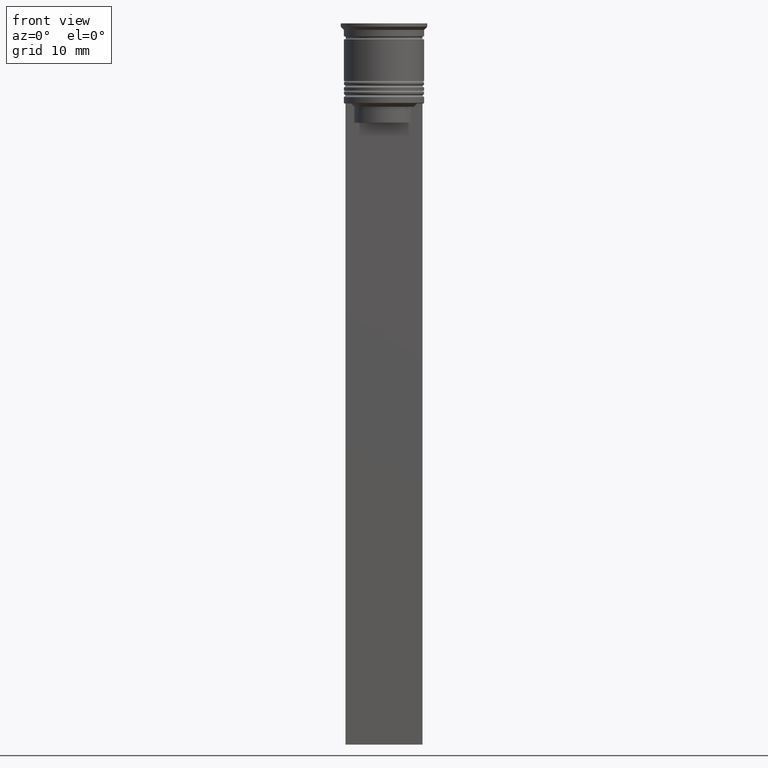
[diagram: clean part render]
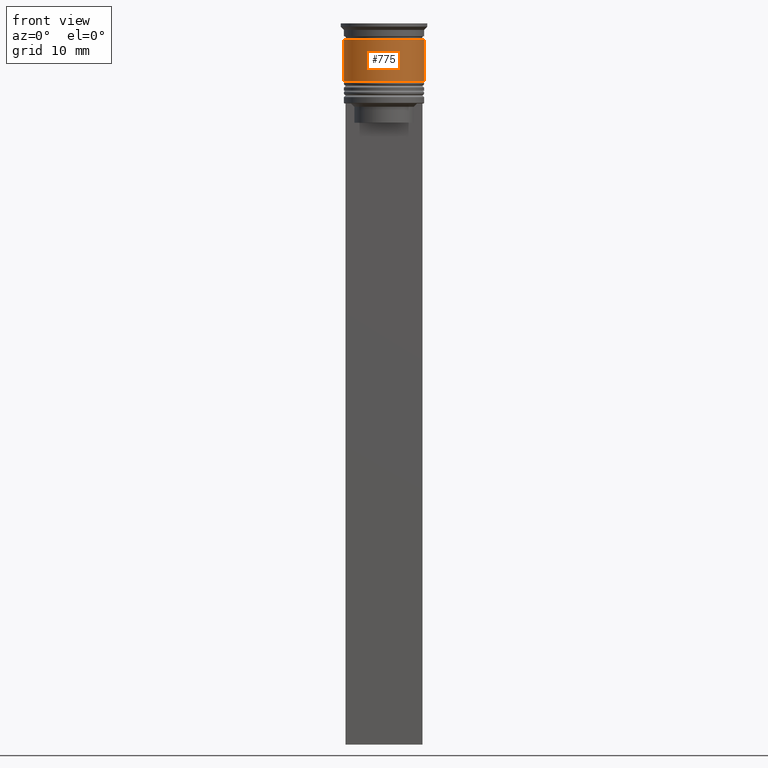
[diagram: same view with one face highlighted and labeled with its STEP entity id]
A machine part, front view. The second image highlights one B-rep face of the part: STEP entity #775.
In plain terms, the highlighted cylindrical surface (partial cylindrical patch) has radius 6.25 mm, axis along (-0, -0, 1).
Its self-contained STEP definition (entity closure, byte-faithful):
#33 = ORIENTED_EDGE ( 'NONE', *, *, #320, .T. ) ;
#250 = CARTESIAN_POINT ( 'NONE',  ( 0.000000000000000000, 0.000000000000000000, 0.000000000000000000 ) ) ;
#320 = EDGE_CURVE ( 'NONE', #1452, #628, #618, .T. ) ;
#425 = EDGE_CURVE ( 'NONE', #2307, #1986, #1034, .T. ) ;
#531 = CARTESIAN_POINT ( 'NONE',  ( 6.250000000000000888, 0.000000000000000000, -9.000000000000001776 ) ) ;
#610 = EDGE_LOOP ( 'NONE', ( #1593, #33, #1113, #1123 ) ) ;
#618 = CIRCLE ( 'NONE', #1307, 6.250000000000000888 ) ;
#628 = VERTEX_POINT ( 'NONE', #531 ) ;
#677 = EDGE_CURVE ( 'NONE', #628, #1986, #1264, .T. ) ;
#752 = VECTOR ( 'NONE', #2197, 1000.000000000000000 ) ;
#775 = ADVANCED_FACE ( 'NONE', ( #1515 ), #2045, .T. ) ;
#823 = AXIS2_PLACEMENT_3D ( 'NONE', #250, #1144, #2224 ) ;
#1034 = CIRCLE ( 'NONE', #1984, 6.249999999999999112 ) ;
#1074 = DIRECTION ( 'NONE',  ( 1.000000000000000000, 0.000000000000000000, 0.000000000000000000 ) ) ;
#1113 = ORIENTED_EDGE ( 'NONE', *, *, #677, .T. ) ;
#1123 = ORIENTED_EDGE ( 'NONE', *, *, #425, .F. ) ;
#1142 = CARTESIAN_POINT ( 'NONE',  ( -6.250000000000000000, 7.654042494670957606E-16, 0.000000000000000000 ) ) ;
#1144 = DIRECTION ( 'NONE',  ( -0.000000000000000000, -0.000000000000000000, 1.000000000000000000 ) ) ;
#1220 = CARTESIAN_POINT ( 'NONE',  ( 0.000000000000000000, 0.000000000000000000, -9.000000000000001776 ) ) ;
#1264 = LINE ( 'NONE', #2018, #752 ) ;
#1285 = EDGE_CURVE ( 'NONE', #1452, #2307, #2043, .T. ) ;
#1307 = AXIS2_PLACEMENT_3D ( 'NONE', #1220, #1425, #1412 ) ;
#1380 = CARTESIAN_POINT ( 'NONE',  ( -6.249999999999999112, 7.654042494670956620E-16, -2.500000000000000444 ) ) ;
#1412 = DIRECTION ( 'NONE',  ( 1.000000000000000000, 0.000000000000000000, 0.000000000000000000 ) ) ;
#1425 = DIRECTION ( 'NONE',  ( -0.000000000000000000, -0.000000000000000000, 1.000000000000000000 ) ) ;
#1452 = VERTEX_POINT ( 'NONE', #1644 ) ;
#1515 = FACE_OUTER_BOUND ( 'NONE', #610, .T. ) ;
#1536 = CARTESIAN_POINT ( 'NONE',  ( 6.249999999999999112, 0.000000000000000000, -2.500000000000000444 ) ) ;
#1593 = ORIENTED_EDGE ( 'NONE', *, *, #1285, .F. ) ;
#1644 = CARTESIAN_POINT ( 'NONE',  ( -6.250000000000001776, 7.654042494670959579E-16, -9.000000000000001776 ) ) ;
#1865 = VECTOR ( 'NONE', #2222, 1000.000000000000000 ) ;
#1960 = CARTESIAN_POINT ( 'NONE',  ( 0.000000000000000000, 0.000000000000000000, -2.500000000000000444 ) ) ;
#1984 = AXIS2_PLACEMENT_3D ( 'NONE', #1960, #2324, #1074 ) ;
#1986 = VERTEX_POINT ( 'NONE', #1536 ) ;
#2018 = CARTESIAN_POINT ( 'NONE',  ( 6.250000000000000000, 0.000000000000000000, 0.000000000000000000 ) ) ;
#2043 = LINE ( 'NONE', #1142, #1865 ) ;
#2045 = CYLINDRICAL_SURFACE ( 'NONE', #823, 6.250000000000000000 ) ;
#2197 = DIRECTION ( 'NONE',  ( -0.000000000000000000, -0.000000000000000000, 1.000000000000000000 ) ) ;
#2222 = DIRECTION ( 'NONE',  ( -0.000000000000000000, -0.000000000000000000, 1.000000000000000000 ) ) ;
#2224 = DIRECTION ( 'NONE',  ( 1.000000000000000000, 0.000000000000000000, 0.000000000000000000 ) ) ;
#2307 = VERTEX_POINT ( 'NONE', #1380 ) ;
#2324 = DIRECTION ( 'NONE',  ( -0.000000000000000000, -0.000000000000000000, 1.000000000000000000 ) ) ;